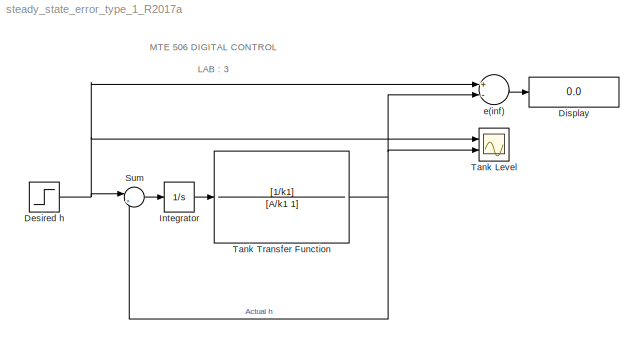
MODEL steady_state_error_type_1_R2017a
KIND model
BLOCK [Step] Desired h
  After = 4
  SID = 2
  SampleTime = 0
  Time = 0
BLOCK [Display] Display
  Decimation = 2
  Ports = [1]
  SID = 8
BLOCK [Integrator] Integrator
  Ports = [1, 1]
  SID = 10
BLOCK [Sum] Sum
  IconShape = round
  InputSameDT = off
  Inputs = |+-
  OutDataTypeStr = Inherit: Inherit via internal rule
  Ports = [2, 1]
  SID = 5
  SaturateOnIntegerOverflow = off
BLOCK [Scope] Tank Level
  Floating = off
  NumInputPorts = 2
  Ports = [2]
  SID = 3
  ScopeSpecificationString = Simulink.scopes.TimeScopeBlockCfg('CurrentConfiguration', extmgr.ConfigurationSet(extmgr.Configuration('Core','General UI',true),extmgr.Configuration('Core','Source UI',true),extmgr.Configuration('Sources','WiredSimulink',true),extmgr.Configuration('Visuals','Time Domain',true,'SerializedDisplays',{struct('MinYLimReal','-0.5005','MaxYLimReal','4.50451','YLabelReal','','MinYLimMag','0.00000','MaxYL...<+1584ch>
BLOCK [TransferFcn] Tank Transfer Function
  Denominator = [A/k1 1]
  Numerator = [1/k1]
  SID = 1
BLOCK [Sum] e(inf)
  InputSameDT = off
  Inputs = +-
  OutDataTypeStr = Inherit: Inherit via internal rule
  Ports = [2, 1]
  SID = 7
  SaturateOnIntegerOverflow = off
ANNOTATION (root): \n \n MTE 506 DIGITAL CONTROL \n LAB : 3 \n EXERCISE : 3-2
NET Desired h:1 -> Sum:1, Tank Level:1, e(inf):1
LINE Integrator:1 -> Tank Transfer Function:1
LINE Sum:1 -> Integrator:1
NET Tank Transfer Function:1 -> Sum:2, Tank Level:2, e(inf):2
LINE e(inf):1 -> Display:1
note: NET lines group one-source signal fan-out (src -> all destinations, sorted); 1:1 wires keep LINE
